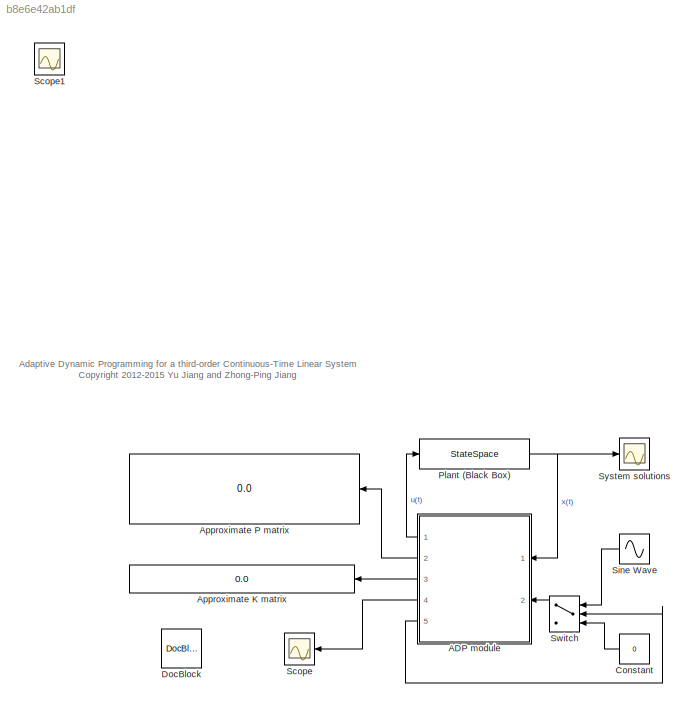
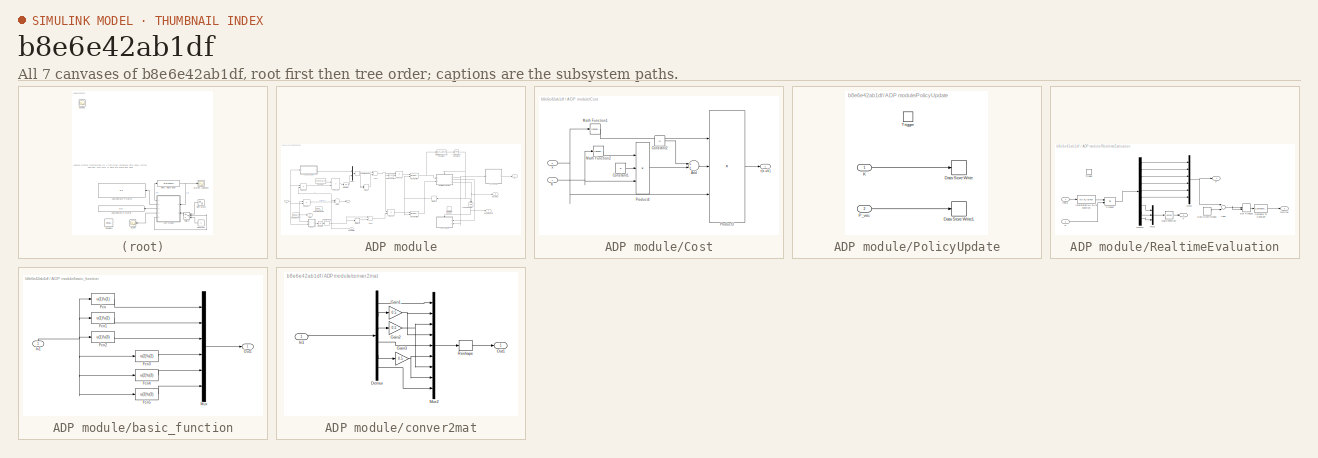
[diagram: thumbnail index - all 7 canvases of the model, root first then tree order]
MODEL slx_b8e6e42ab1df
KIND model
CONFIG AbsTol = auto
CONFIG FixedStep = auto
CONFIG MaxStep = 0.0001
CONFIG MinStep = auto
CONFIG RelTol = 1e-3
CONFIG SampleTimeConstraint = Unconstrained
CONFIG Solver = ode45
CONFIG SolverMode = Auto
CONFIG SolverName = ode45
CONFIG StartTime = 0.0
CONFIG StopTime = 10
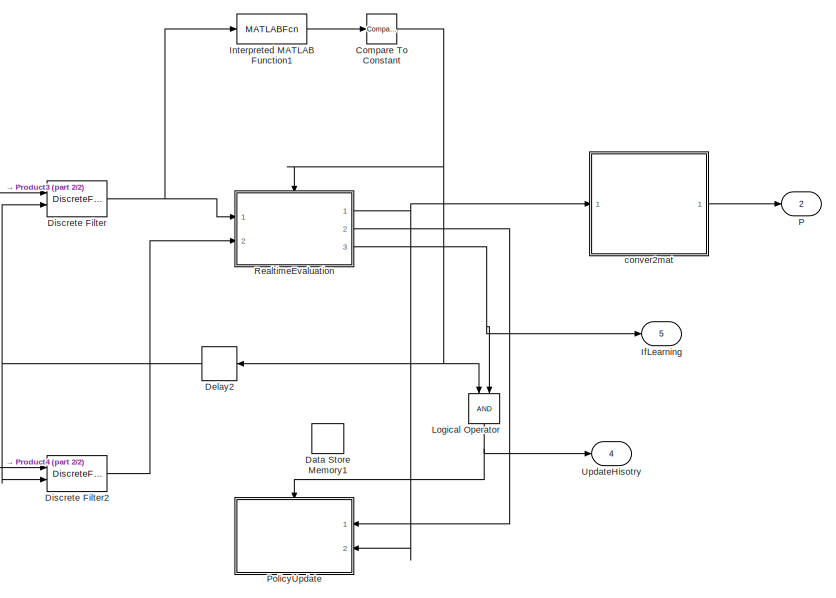
[diagram: ADP module - part 1/2, right side, full height]
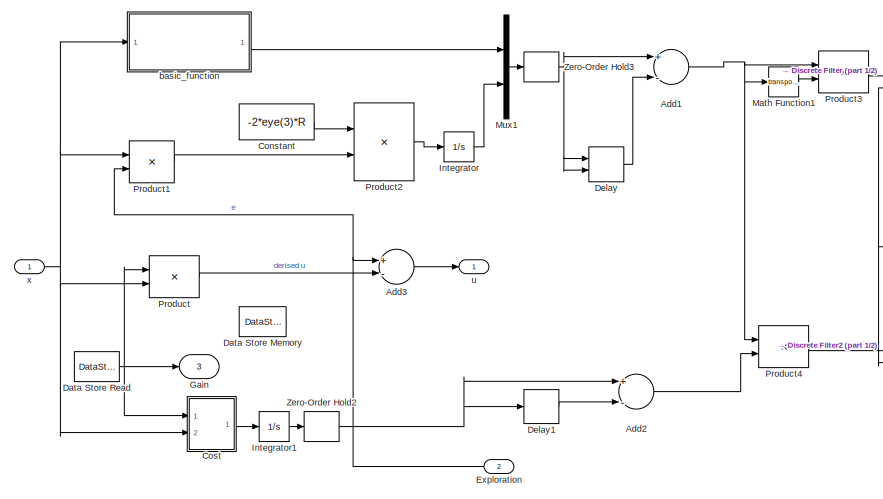
[diagram: ADP module - part 2/2, left side, full height]
BLOCK [SubSystem] ADP module
  Ports = [2, 5]
  RequestExecContextInheritance = off
BLOCK [Sum] ADP module/Add1
  InputSameDT = off
  Inputs = +-
  OutDataTypeStr = Inherit: Inherit via internal rule
  Ports = [2, 1]
  SaturateOnIntegerOverflow = off
BLOCK [Sum] ADP module/Add2
  InputSameDT = off
  Inputs = +-
  OutDataTypeStr = Inherit: Inherit via internal rule
  Ports = [2, 1]
  SaturateOnIntegerOverflow = off
BLOCK [Sum] ADP module/Add3
  InputSameDT = off
  Inputs = +-
  OutDataTypeStr = Inherit: Inherit via internal rule
  Ports = [2, 1]
  SaturateOnIntegerOverflow = off
BLOCK [Reference] ADP module/Compare To Constant  REF=simulink/Logic and Bit
Operations/Compare
To Constant
  OutDataTypeStr = boolean
  Ports = [1, 1]
  SourceBlock = simulink/Logic and Bit\nOperations/Compare\nTo Constant
  SourceType = Compare To Constant
  ZeroCross = on
  const = 9
  relop = ==
BLOCK [Constant] ADP module/Constant
  Value = -2*eye(3)*R
  VectorParams1D = off
BLOCK [SubSystem] ADP module/Cost
  Ports = [2, 1]
  RequestExecContextInheritance = off
BLOCK [Sum] ADP module/Cost/Add
  InputSameDT = off
  OutDataTypeStr = Inherit: Inherit via internal rule
  Ports = [2, 1]
  SaturateOnIntegerOverflow = off
BLOCK [Constant] ADP module/Cost/Constant1
  Value = R
BLOCK [Constant] ADP module/Cost/Constant2
  Value = Q
BLOCK [Inport] ADP module/Cost/K
  IconDisplay = Port number
BLOCK [Math] ADP module/Cost/Math Function1
  Operator = transpose
  Ports = [1, 1]
BLOCK [Math] ADP module/Cost/Math Function2
  Operator = transpose
  Ports = [1, 1]
BLOCK [Product] ADP module/Cost/Product3
  InputSameDT = off
  Inputs = 3
  Multiplication = Matrix(*)
  OutDataTypeStr = Inherit: Inherit via internal rule
  Ports = [3, 1]
  RndMeth = Floor
  SaturateOnIntegerOverflow = off
BLOCK [Product] ADP module/Cost/Product4
  InputSameDT = off
  Inputs = 3
  Multiplication = Matrix(*)
  OutDataTypeStr = Inherit: Inherit via internal rule
  Ports = [3, 1]
  RndMeth = Floor
  SaturateOnIntegerOverflow = off
BLOCK [Outport] ADP module/Cost/r(x,uk)
  IconDisplay = Port number
BLOCK [Inport] ADP module/Cost/x
  IconDisplay = Port number
  Port = 2
  PortDimensions = 3
BLOCK [DataStoreMemory] ADP module/Data Store Memory
  DataStoreName = K
  Dimensions = [1,3]
  InitialValue = K
  Priority = 1
  VectorParams1D = off
BLOCK [DataStoreMemory] ADP module/Data Store Memory1
  DataStoreName = P
  InitialValue = -1*ones(6,1)
BLOCK [DataStoreRead] ADP module/Data Store Read
  DataStoreName = K
  Ports = [0, 1]
  SampleTime = 0
BLOCK [Delay] ADP module/Delay
  DelayLength = 1
  InitialCondition = 0
  InitialConditionSource = Input port
  InputPortMap = u0,p4
  Ports = [2, 1]
  SampleTime = dT
BLOCK [Delay] ADP module/Delay1
  DelayLength = 1
  InitialCondition = 0
  InputPortMap = u0
  Ports = [1, 1]
  SampleTime = dT
BLOCK [Delay] ADP module/Delay2
  DelayLength = 1
  InitialCondition = 0
  InputPortMap = u0
  Ports = [1, 1]
  SampleTime = dT
BLOCK [DiscreteFilter] ADP module/Discrete Filter
  Denominator = [1 -1]
  ExternalReset = Rising
  FilterStructure = Direct form I
  InputPortMap = u0,r7
  NumAccumDataTypeStr = Inherit: Same as product output
  Numerator = [1 0]
  OutDataTypeStr = Inherit: Same as input
  Ports = [2, 1]
  SampleTime = dT
BLOCK [DiscreteFilter] ADP module/Discrete Filter2
  Denominator = [1 -1]
  ExternalReset = Rising
  FilterStructure = Direct form I
  InputPortMap = u0,r7
  NumAccumDataTypeStr = Inherit: Same as product output
  Numerator = [1 0]
  OutDataTypeStr = Inherit: Same as input
  Ports = [2, 1]
  SampleTime = dT
BLOCK [Inport] ADP module/Exploration
  IconDisplay = Port number
  Port = 2
BLOCK [Outport] ADP module/Gain
  IconDisplay = Port number
  Port = 3
BLOCK [Outport] ADP module/IfLearning
  IconDisplay = Port number
  Port = 5
BLOCK [Integrator] ADP module/Integrator
  Ports = [1, 1]
BLOCK [Integrator] ADP module/Integrator1
  Ports = [1, 1]
BLOCK [MATLABFcn] ADP module/Interpreted MATLAB Function1
  MATLABFcn = rank(u)
  OutputDimensions = 1
  Ports = [1, 1]
BLOCK [Logic] ADP module/Logical Operator
  AllPortsSameDT = off
  OutDataTypeStr = boolean
  Ports = [2, 1]
BLOCK [Math] ADP module/Math Function1
  Operator = transpose
  Ports = [1, 1]
BLOCK [Mux] ADP module/Mux1
  DisplayOption = bar
  Inputs = 2
  Ports = [2, 1]
BLOCK [Outport] ADP module/P 
  IconDisplay = Port number
  Port = 2
BLOCK [SubSystem] ADP module/PolicyUpdate
  Ports = [2, 0, 0, 1]
  RequestExecContextInheritance = off
BLOCK [DataStoreWrite] ADP module/PolicyUpdate/Data Store Write
  DataStoreName = K
  Ports = [1]
BLOCK [DataStoreWrite] ADP module/PolicyUpdate/Data Store Write1
  DataStoreName = P
  Ports = [1]
BLOCK [Inport] ADP module/PolicyUpdate/K
  IconDisplay = Port number
  OutDataTypeStr = double
  PortDimensions = [1,3]
BLOCK [Inport] ADP module/PolicyUpdate/P_vec 
  IconDisplay = Port number
  Port = 2
  PortDimensions = 6
BLOCK [TriggerPort] ADP module/PolicyUpdate/Trigger
  OutputDataType = double
  PortDimensions = 1
  Ports = []
  StatesWhenEnabling = held
BLOCK [Product] ADP module/Product
  InputSameDT = off
  Multiplication = Matrix(*)
  OutDataTypeStr = Inherit: Inherit via internal rule
  Ports = [2, 1]
  RndMeth = Floor
  SaturateOnIntegerOverflow = off
BLOCK [Product] ADP module/Product1
  InputSameDT = off
  OutDataTypeStr = Inherit: Inherit via internal rule
  Ports = [2, 1]
  RndMeth = Floor
  SaturateOnIntegerOverflow = off
BLOCK [Product] ADP module/Product2
  InputSameDT = off
  Multiplication = Matrix(*)
  OutDataTypeStr = Inherit: Inherit via internal rule
  Ports = [2, 1]
  RndMeth = Floor
  SaturateOnIntegerOverflow = off
BLOCK [Product] ADP module/Product3
  InputSameDT = off
  Multiplication = Matrix(*)
  OutDataTypeStr = Inherit: Inherit via internal rule
  Ports = [2, 1]
  RndMeth = Floor
  SaturateOnIntegerOverflow = off
BLOCK [Product] ADP module/Product4
  InputSameDT = off
  Multiplication = Matrix(*)
  OutDataTypeStr = Inherit: Inherit via internal rule
  Ports = [2, 1]
  RndMeth = Floor
  SaturateOnIntegerOverflow = off
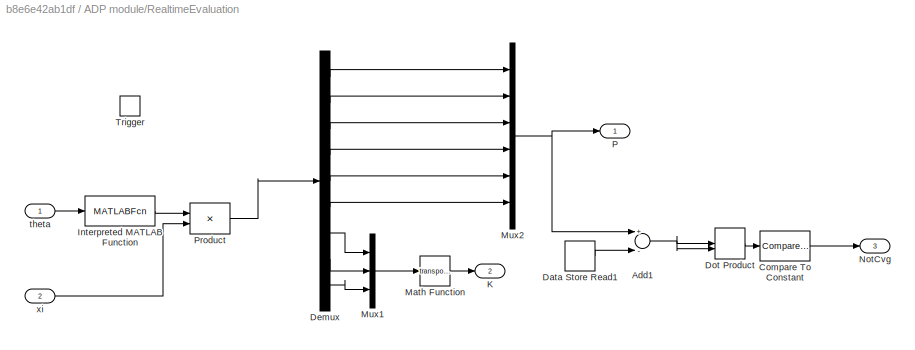
BLOCK [SubSystem] ADP module/RealtimeEvaluation
  Ports = [2, 3, 0, 1]
  RequestExecContextInheritance = off
BLOCK [Sum] ADP module/RealtimeEvaluation/Add1
  InputSameDT = off
  Inputs = +-
  OutDataTypeStr = Inherit: Inherit via internal rule
  Ports = [2, 1]
  SaturateOnIntegerOverflow = off
BLOCK [Reference] ADP module/RealtimeEvaluation/Compare To Constant  REF=simulink/Logic and Bit
Operations/Compare
To Constant
  OutDataTypeStr = boolean
  Ports = [1, 1]
  SourceBlock = simulink/Logic and Bit\nOperations/Compare\nTo Constant
  SourceType = Compare To Constant
  ZeroCross = on
  const = epsilon
  relop = >
BLOCK [DataStoreRead] ADP module/RealtimeEvaluation/Data Store Read1
  DataStoreName = P
  Ports = [0, 1]
BLOCK [Demux] ADP module/RealtimeEvaluation/Demux
  DisplayOption = bar
  Outputs = 9
  Ports = [1, 9]
BLOCK [DotProduct] ADP module/RealtimeEvaluation/Dot Product
  OutDataTypeStr = Inherit: Inherit via internal rule
BLOCK [MATLABFcn] ADP module/RealtimeEvaluation/Interpreted MATLAB Function
  MATLABFcn = -pinv(u)
  Output1D = off
  Ports = [1, 1]
BLOCK [Outport] ADP module/RealtimeEvaluation/K
  IconDisplay = Port number
  InitialOutput = K
  Port = 2
  PortDimensions = [1,3]
BLOCK [Math] ADP module/RealtimeEvaluation/Math Function
  Operator = transpose
  Ports = [1, 1]
BLOCK [Mux] ADP module/RealtimeEvaluation/Mux1
  DisplayOption = bar
  Inputs = 3
  Ports = [3, 1]
BLOCK [Mux] ADP module/RealtimeEvaluation/Mux2
  DisplayOption = bar
  Inputs = 6
  Ports = [6, 1]
BLOCK [Outport] ADP module/RealtimeEvaluation/NotCvg
  IconDisplay = Port number
  InitialOutput = 1
  Port = 3
  PortDimensions = 1
BLOCK [Outport] ADP module/RealtimeEvaluation/P
  IconDisplay = Port number
  InitialOutput = zeros(6,1)
  OutDataTypeStr = double
  PortDimensions = 6
BLOCK [Product] ADP module/RealtimeEvaluation/Product
  InputSameDT = off
  Multiplication = Matrix(*)
  OutDataTypeStr = double
  Ports = [2, 1]
  RndMeth = Floor
  SaturateOnIntegerOverflow = off
BLOCK [TriggerPort] ADP module/RealtimeEvaluation/Trigger
  OutputDataType = double
  PortDimensions = 1
  Ports = []
  StatesWhenEnabling = held
BLOCK [Inport] ADP module/RealtimeEvaluation/theta
  IconDisplay = Port number
BLOCK [Inport] ADP module/RealtimeEvaluation/xi
  IconDisplay = Port number
  Port = 2
BLOCK [Outport] ADP module/UpdateHisotry
  IconDisplay = Port number
  Port = 4
BLOCK [ZeroOrderHold] ADP module/Zero-Order Hold2
  SampleTime = dT
BLOCK [ZeroOrderHold] ADP module/Zero-Order Hold3
  SampleTime = dT
BLOCK [SubSystem] ADP module/basic_function
  Ports = [1, 1]
  RequestExecContextInheritance = off
BLOCK [Fcn] ADP module/basic_function/Fcn
  Expr = u(1)*u(1)
BLOCK [Fcn] ADP module/basic_function/Fcn1
  Expr = u(1)*u(2)
BLOCK [Fcn] ADP module/basic_function/Fcn2
  Expr = u(1)*u(3)
BLOCK [Fcn] ADP module/basic_function/Fcn3
  Expr = u(2)*u(2)
BLOCK [Fcn] ADP module/basic_function/Fcn4
  Expr = u(2)*u(3)
BLOCK [Fcn] ADP module/basic_function/Fcn5
  Expr = u(3)*u(3)
BLOCK [Inport] ADP module/basic_function/In1
  IconDisplay = Port number
BLOCK [Mux] ADP module/basic_function/Mux
  DisplayOption = bar
  Inputs = 6
  Ports = [6, 1]
BLOCK [Outport] ADP module/basic_function/Out1
  IconDisplay = Port number
  PortDimensions = 6
BLOCK [SubSystem] ADP module/conver2mat
  Ports = [1, 1]
  RequestExecContextInheritance = off
BLOCK [Demux] ADP module/conver2mat/Demux
  DisplayOption = bar
  Outputs = 6
  Ports = [1, 6]
BLOCK [Gain] ADP module/conver2mat/Gain1
  Gain = 0.5
  OutDataTypeStr = Inherit: Inherit via internal rule
  ParamDataTypeStr = Inherit: Inherit via internal rule
  SaturateOnIntegerOverflow = off
BLOCK [Gain] ADP module/conver2mat/Gain2
  Gain = 0.5
  OutDataTypeStr = Inherit: Inherit via internal rule
  ParamDataTypeStr = Inherit: Inherit via internal rule
  SaturateOnIntegerOverflow = off
BLOCK [Gain] ADP module/conver2mat/Gain3
  Gain = 0.5
  OutDataTypeStr = Inherit: Inherit via internal rule
  ParamDataTypeStr = Inherit: Inherit via internal rule
  SaturateOnIntegerOverflow = off
BLOCK [Inport] ADP module/conver2mat/In1
  IconDisplay = Port number
BLOCK [Mux] ADP module/conver2mat/Mux2
  DisplayOption = bar
  Inputs = 9
  Ports = [9, 1]
BLOCK [Outport] ADP module/conver2mat/Out1
  IconDisplay = Port number
BLOCK [Reshape] ADP module/conver2mat/Reshape
  OutputDimensionality = Customize
  OutputDimensions = [3,3]
  Ports = [1, 1]
BLOCK [Outport] ADP module/u
  IconDisplay = Port number
BLOCK [Inport] ADP module/x
  IconDisplay = Port number
  PortDimensions = 3
BLOCK [Display] Approximate K matrix
  Decimation = 1
  Ports = [1]
BLOCK [Display] Approximate P matrix
  Decimation = 1
  Ports = [1]
BLOCK [Constant] Constant
  Value = 0
BLOCK [Reference] DocBlock  REF=simulink/Model-Wide
Utilities/DocBlock
  DocumentType = Text
  Ports = []
  SourceBlock = simulink/Model-Wide\nUtilities/DocBlock
  SourceType = DocBlock
  UserDataPersistent = on
BLOCK [StateSpace] Plant (Black Box)
  A = [0 1 0; 0 0 1;-0.1 -0.5 -0.7]
  B = [0;0;1]
  C = eye(3)
  D = zeros(3,1)
  Ports = [1, 1]
  X0 = [10;-10;15]
BLOCK [Scope] Scope
  Floating = off
  LimitDataPoints = off
  NumInputPorts = 1
  Ports = [1]
  SampleTime = 0
  SaveName = ScopeData2
BLOCK [Scope] Scope1
  DataFormat = StructureWithTime
  Floating = off
  IOType = viewer
  NumInputPorts = 1
  Ports = []
  SampleTime = 0
  SaveName = ScopeData2
BLOCK [Sin] Sine Wave
  Amplitude = 2
  Frequency = 10
  Ports = [0, 1]
  SampleTime = 0.0001
BLOCK [Switch] Switch
  Criteria = u2 > Threshold
  InputSameDT = off
  SampleTime = 0.0001
  SaturateOnIntegerOverflow = off
BLOCK [Scope] System solutions 
  DataFormat = StructureWithTime
  Floating = off
  LegendLocations = 0.74865     0.73622     0.18022     0.16096
  LimitDataPoints = off
  NumInputPorts = 1
  Ports = [1]
  SampleTime = 0
  SaveToWorkspace = on
  ShowLegends = on
  TimeRange = 10
  YMax = 20
  YMin = -10
  ZoomMode = xonly
ANNOTATION (root): Adaptive Dynamic Programming for a third-order Continuous-Time Linear System <copyright redacted>
NET ADP module/Add1:1 -> ADP module/Math Function1:1, ADP module/Product3:1, ADP module/Product4:1
LINE ADP module/Add2:1 -> ADP module/Product4:2
LINE ADP module/Add3:1 -> ADP module/u:1
NET ADP module/Compare To Constant:1 -> ADP module/Delay2:1, ADP module/Logical Operator:1, ADP module/RealtimeEvaluation:trigger
LINE ADP module/Constant:1 -> ADP module/Product2:1
LINE ADP module/Cost/Add:1 -> ADP module/Cost/Product3:2
LINE ADP module/Cost/Constant1:1 -> ADP module/Cost/Product4:2
LINE ADP module/Cost/Constant2:1 -> ADP module/Cost/Add:1
NET ADP module/Cost/K:1 -> ADP module/Cost/Math Function2:1, ADP module/Cost/Product4:3
LINE ADP module/Cost/Math Function1:1 -> ADP module/Cost/Product3:1
LINE ADP module/Cost/Math Function2:1 -> ADP module/Cost/Product4:1
LINE ADP module/Cost/Product3:1 -> ADP module/Cost/r(x,uk):1
LINE ADP module/Cost/Product4:1 -> ADP module/Cost/Add:2
NET ADP module/Cost/x:1 -> ADP module/Cost/Math Function1:1, ADP module/Cost/Product3:3
LINE ADP module/Cost:1 -> ADP module/Integrator1:1
NET ADP module/Data Store Read:1 -> ADP module/Cost:1, ADP module/Gain:1, ADP module/Product:1
LINE ADP module/Delay1:1 -> ADP module/Add2:2
NET ADP module/Delay2:1 -> ADP module/Discrete Filter2:2, ADP module/Discrete Filter:2
LINE ADP module/Delay:1 -> ADP module/Add1:2
LINE ADP module/Discrete Filter2:1 -> ADP module/RealtimeEvaluation:2
NET ADP module/Discrete Filter:1 -> ADP module/Interpreted MATLAB Function1:1, ADP module/RealtimeEvaluation:1
NET ADP module/Exploration:1 -> ADP module/Add3:1, ADP module/Product1:2
LINE ADP module/Integrator1:1 -> ADP module/Zero-Order Hold2:1
LINE ADP module/Integrator:1 -> ADP module/Mux1:2
LINE ADP module/Interpreted MATLAB Function1:1 -> ADP module/Compare To Constant:1
NET ADP module/Logical Operator:1 -> ADP module/PolicyUpdate:trigger, ADP module/UpdateHisotry:1
LINE ADP module/Math Function1:1 -> ADP module/Product3:2
LINE ADP module/Mux1:1 -> ADP module/Zero-Order Hold3:1
LINE ADP module/PolicyUpdate/K:1 -> ADP module/PolicyUpdate/Data Store Write:1
LINE ADP module/PolicyUpdate/P_vec :1 -> ADP module/PolicyUpdate/Data Store Write1:1
LINE ADP module/Product1:1 -> ADP module/Product2:2
LINE ADP module/Product2:1 -> ADP module/Integrator:1
LINE ADP module/Product3:1 -> ADP module/Discrete Filter:1
LINE ADP module/Product4:1 -> ADP module/Discrete Filter2:1
LINE ADP module/Product:1 -> ADP module/Add3:2
NET ADP module/RealtimeEvaluation/Add1:1 -> ADP module/RealtimeEvaluation/Dot Product:1, ADP module/RealtimeEvaluation/Dot Product:2
LINE ADP module/RealtimeEvaluation/Compare To Constant:1 -> ADP module/RealtimeEvaluation/NotCvg:1
LINE ADP module/RealtimeEvaluation/Data Store Read1:1 -> ADP module/RealtimeEvaluation/Add1:2
LINE ADP module/RealtimeEvaluation/Demux:1 -> ADP module/RealtimeEvaluation/Mux2:1
LINE ADP module/RealtimeEvaluation/Demux:2 -> ADP module/RealtimeEvaluation/Mux2:2
LINE ADP module/RealtimeEvaluation/Demux:3 -> ADP module/RealtimeEvaluation/Mux2:3
LINE ADP module/RealtimeEvaluation/Demux:4 -> ADP module/RealtimeEvaluation/Mux2:4
LINE ADP module/RealtimeEvaluation/Demux:5 -> ADP module/RealtimeEvaluation/Mux2:5
LINE ADP module/RealtimeEvaluation/Demux:6 -> ADP module/RealtimeEvaluation/Mux2:6
LINE ADP module/RealtimeEvaluation/Demux:7 -> ADP module/RealtimeEvaluation/Mux1:1
LINE ADP module/RealtimeEvaluation/Demux:8 -> ADP module/RealtimeEvaluation/Mux1:2
LINE ADP module/RealtimeEvaluation/Demux:9 -> ADP module/RealtimeEvaluation/Mux1:3
LINE ADP module/RealtimeEvaluation/Dot Product:1 -> ADP module/RealtimeEvaluation/Compare To Constant:1
LINE ADP module/RealtimeEvaluation/Interpreted MATLAB Function:1 -> ADP module/RealtimeEvaluation/Product:1
LINE ADP module/RealtimeEvaluation/Math Function:1 -> ADP module/RealtimeEvaluation/K:1
LINE ADP module/RealtimeEvaluation/Mux1:1 -> ADP module/RealtimeEvaluation/Math Function:1
NET ADP module/RealtimeEvaluation/Mux2:1 -> ADP module/RealtimeEvaluation/Add1:1, ADP module/RealtimeEvaluation/P:1
LINE ADP module/RealtimeEvaluation/Product:1 -> ADP module/RealtimeEvaluation/Demux:1
LINE ADP module/RealtimeEvaluation/theta:1 -> ADP module/RealtimeEvaluation/Interpreted MATLAB Function:1
LINE ADP module/RealtimeEvaluation/xi:1 -> ADP module/RealtimeEvaluation/Product:2
NET ADP module/RealtimeEvaluation:1 -> ADP module/PolicyUpdate:2, ADP module/conver2mat:1
LINE ADP module/RealtimeEvaluation:2 -> ADP module/PolicyUpdate:1
NET ADP module/RealtimeEvaluation:3 -> ADP module/IfLearning:1, ADP module/Logical Operator:2
NET ADP module/Zero-Order Hold2:1 -> ADP module/Add2:1, ADP module/Delay1:1
NET ADP module/Zero-Order Hold3:1 -> ADP module/Add1:1, ADP module/Delay:1, ADP module/Delay:2
LINE ADP module/basic_function/Fcn1:1 -> ADP module/basic_function/Mux:2
LINE ADP module/basic_function/Fcn2:1 -> ADP module/basic_function/Mux:3
LINE ADP module/basic_function/Fcn3:1 -> ADP module/basic_function/Mux:4
LINE ADP module/basic_function/Fcn4:1 -> ADP module/basic_function/Mux:5
LINE ADP module/basic_function/Fcn5:1 -> ADP module/basic_function/Mux:6
LINE ADP module/basic_function/Fcn:1 -> ADP module/basic_function/Mux:1
NET ADP module/basic_function/In1:1 -> ADP module/basic_function/Fcn1:1, ADP module/basic_function/Fcn2:1, ADP module/basic_function/Fcn3:1, ADP module/basic_function/Fcn4:1, ADP module/basic_function/Fcn5:1, ADP module/basic_function/Fcn:1
LINE ADP module/basic_function/Mux:1 -> ADP module/basic_function/Out1:1
LINE ADP module/basic_function:1 -> ADP module/Mux1:1
LINE ADP module/conver2mat/Demux:1 -> ADP module/conver2mat/Mux2:1
LINE ADP module/conver2mat/Demux:2 -> ADP module/conver2mat/Gain1:1
LINE ADP module/conver2mat/Demux:3 -> ADP module/conver2mat/Gain2:1
LINE ADP module/conver2mat/Demux:4 -> ADP module/conver2mat/Mux2:5
LINE ADP module/conver2mat/Demux:5 -> ADP module/conver2mat/Gain3:1
LINE ADP module/conver2mat/Demux:6 -> ADP module/conver2mat/Mux2:9
NET ADP module/conver2mat/Gain1:1 -> ADP module/conver2mat/Mux2:2, ADP module/conver2mat/Mux2:4
NET ADP module/conver2mat/Gain2:1 -> ADP module/conver2mat/Mux2:3, ADP module/conver2mat/Mux2:7
NET ADP module/conver2mat/Gain3:1 -> ADP module/conver2mat/Mux2:6, ADP module/conver2mat/Mux2:8
LINE ADP module/conver2mat/In1:1 -> ADP module/conver2mat/Demux:1
LINE ADP module/conver2mat/Mux2:1 -> ADP module/conver2mat/Reshape:1
LINE ADP module/conver2mat/Reshape:1 -> ADP module/conver2mat/Out1:1
LINE ADP module/conver2mat:1 -> ADP module/P :1
NET ADP module/x:1 -> ADP module/Cost:2, ADP module/Product1:1, ADP module/Product:2, ADP module/basic_function:1
LINE ADP module:1 -> Plant (Black Box):1
LINE ADP module:2 -> Approximate P matrix:1
LINE ADP module:3 -> Approximate K matrix:1
LINE ADP module:4 -> Scope:1
LINE ADP module:5 -> Switch:2
LINE Constant:1 -> Switch:3
NET Plant (Black Box):1 -> ADP module:1, System solutions :1
LINE Sine Wave:1 -> Switch:1
LINE Switch:1 -> ADP module:2
note: NET lines group one-source signal fan-out (src -> all destinations, sorted); 1:1 wires keep LINE
